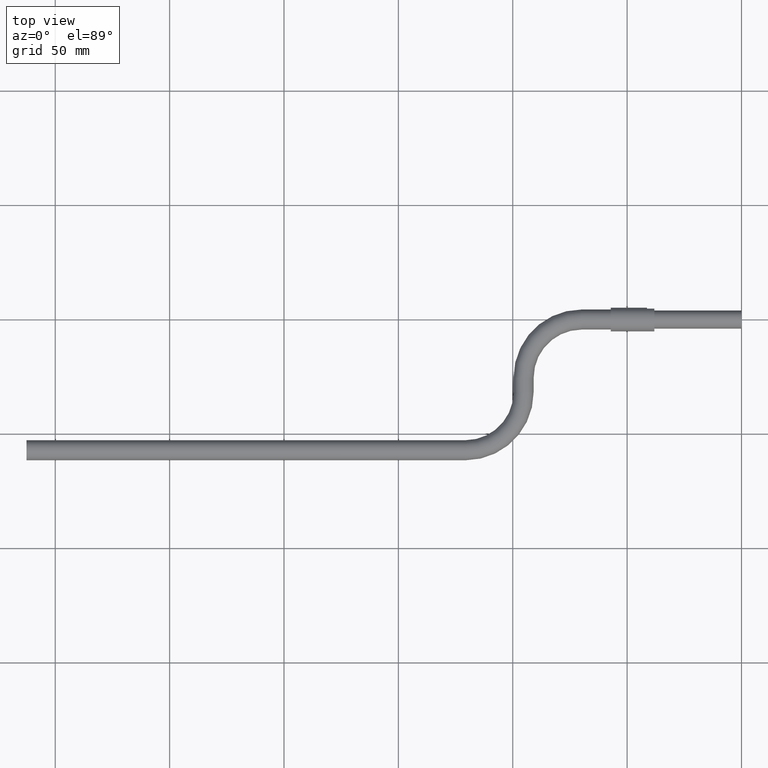
[diagram: clean part render]
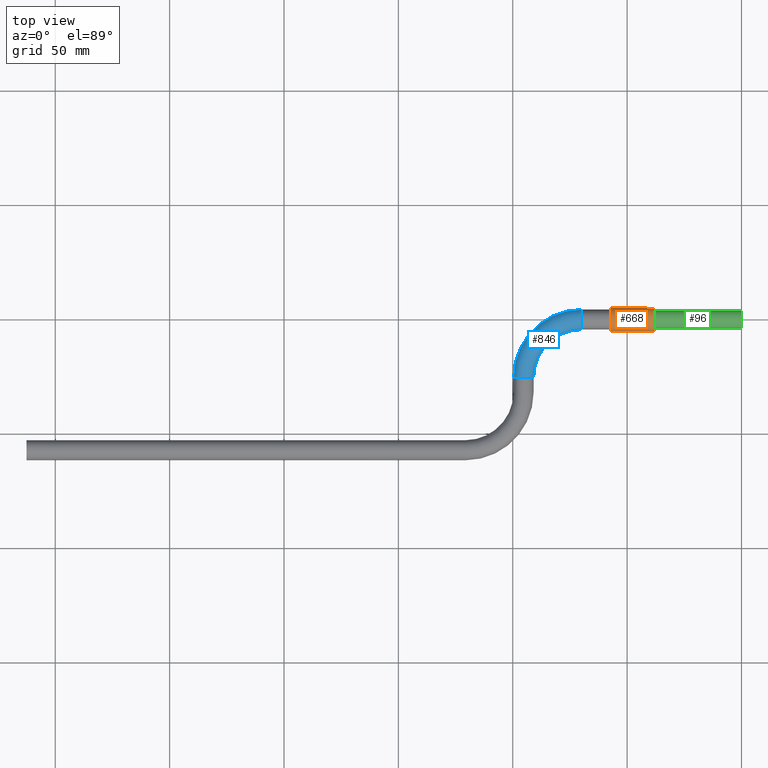
[diagram: same view with three faces highlighted in distinct colors, each labeled with its STEP entity id]
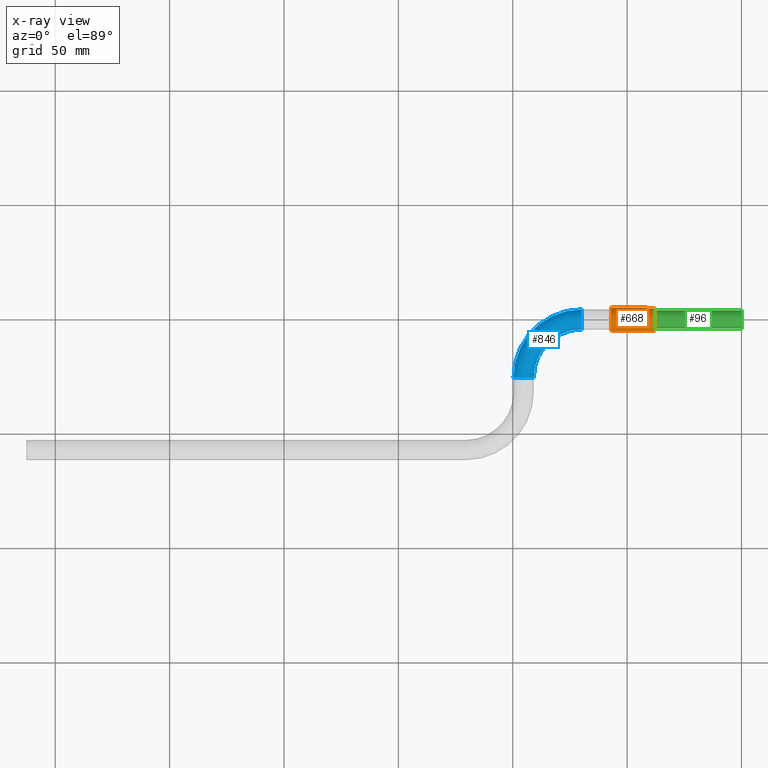
[diagram: x-ray of the same camera — body ghosted, the three highlighted faces saturated]
A machine part, top view with three faces highlighted in distinct colors.
The next image is the same camera in x-ray (body ghosted, the three faces saturated) — at least one of them is partly hidden behind the body in this view.
Their STEP definitions:

[orange] entity #668 — the highlighted cylindrical surface (edge-blend (fillet) strip) has radius 5.1562 mm, axis along (-1, -0, 0).
#23 = CARTESIAN_POINT ( 'NONE',  ( -2.250000000000000444, -2.048885995248197414E-16, 0.0000000000000000000 ) ) ;
#65 = EDGE_CURVE ( 'NONE', #452, #667, #132, .T. ) ;
#69 = ORIENTED_EDGE ( 'NONE', *, *, #501, .F. ) ;
#77 = AXIS2_PLACEMENT_3D ( 'NONE', #1287, #162, #1147 ) ;
#102 = CARTESIAN_POINT ( 'NONE',  ( -2.372323719839775968, 0.1870000000000000828, 0.07899367063252536736 ) ) ;
#115 = ORIENTED_EDGE ( 'NONE', *, *, #772, .T. ) ;
#117 = VERTEX_POINT ( 'NONE', #807 ) ;
#127 = DIRECTION ( 'NONE',  ( 1.000000000000000000, 0.0000000000000000000, 0.0000000000000000000 ) ) ;
#132 = LINE ( 'NONE', #351, #1175 ) ;
#140 = LINE ( 'NONE', #283, #473 ) ;
#162 = DIRECTION ( 'NONE',  ( -1.000000000000000000, -1.836970198721030181E-16, 0.0000000000000000000 ) ) ;
#166 = CARTESIAN_POINT ( 'NONE',  ( -1.625000000000000000, -6.829619984160658046E-17, 0.0000000000000000000 ) ) ;
#183 = DIRECTION ( 'NONE',  ( -1.000000000000000000, -1.836970198721030181E-16, 0.0000000000000000000 ) ) ;
#203 = FACE_OUTER_BOUND ( 'NONE', #1155, .T. ) ;
#207 = ORIENTED_EDGE ( 'NONE', *, *, #1097, .T. ) ;
#246 = ORIENTED_EDGE ( 'NONE', *, *, #65, .T. ) ;
#283 = CARTESIAN_POINT ( 'NONE',  ( -2.372323719839775968, -0.2030000000000000693, 0.0000000000000000000 ) ) ;
#292 = CARTESIAN_POINT ( 'NONE',  ( -1.625000000000000000, 0.1870000000000002216, 0.07899367063252536736 ) ) ;
#315 = CARTESIAN_POINT ( 'NONE',  ( -2.372323719839775968, -2.048885995248197414E-16, 0.0000000000000000000 ) ) ;
#319 = DIRECTION ( 'NONE',  ( -1.000000000000000000, -1.836970198721030181E-16, 0.0000000000000000000 ) ) ;
#320 = AXIS2_PLACEMENT_3D ( 'NONE', #166, #127, #1300 ) ;
#351 = CARTESIAN_POINT ( 'NONE',  ( -2.372323719839775968, 0.2029999999999996529, 2.486033002269125204E-17 ) ) ;
#354 = ORIENTED_EDGE ( 'NONE', *, *, #1052, .F. ) ;
#362 = VECTOR ( 'NONE', #1158, 39.37007874015748143 ) ;
#393 = CYLINDRICAL_SURFACE ( 'NONE', #1187, 0.2029999999999998472 ) ;
#452 = VERTEX_POINT ( 'NONE', #1085 ) ;
#465 = VERTEX_POINT ( 'NONE', #292 ) ;
#473 = VECTOR ( 'NONE', #885, 39.37007874015748143 ) ;
#501 = EDGE_CURVE ( 'NONE', #117, #667, #645, .T. ) ;
#507 = DIRECTION ( 'NONE',  ( 0.0000000000000000000, -1.000000000000000000, 0.0000000000000000000 ) ) ;
#587 = CARTESIAN_POINT ( 'NONE',  ( -1.500000000000000222, -0.2029999999999999305, 0.0000000000000000000 ) ) ;
#590 = AXIS2_PLACEMENT_3D ( 'NONE', #23, #721, #507 ) ;
#645 = CIRCLE ( 'NONE', #590, 0.2029999999999999027 ) ;
#667 = VERTEX_POINT ( 'NONE', #1016 ) ;
#668 = ADVANCED_FACE ( 'NONE', ( #203 ), #393, .T. ) ;
#696 = VERTEX_POINT ( 'NONE', #986 ) ;
#721 = DIRECTION ( 'NONE',  ( -1.000000000000000000, -1.836970198721030181E-16, 0.0000000000000000000 ) ) ;
#752 = VERTEX_POINT ( 'NONE', #587 ) ;
#772 = EDGE_CURVE ( 'NONE', #752, #696, #828, .T. ) ;
#807 = CARTESIAN_POINT ( 'NONE',  ( -2.250000000000000444, -0.2030000000000000970, 0.0000000000000000000 ) ) ;
#828 = CIRCLE ( 'NONE', #77, 0.2029999999999998472 ) ;
#885 = DIRECTION ( 'NONE',  ( -1.000000000000000000, -1.836970198721030181E-16, 0.0000000000000000000 ) ) ;
#932 = DIRECTION ( 'NONE',  ( 0.0000000000000000000, -1.000000000000000000, 0.0000000000000000000 ) ) ;
#986 = CARTESIAN_POINT ( 'NONE',  ( -1.500000000000000222, 0.1870000000000002216, 0.07899367063252536736 ) ) ;
#1016 = CARTESIAN_POINT ( 'NONE',  ( -2.250000000000000444, 0.2029999999999996807, 2.486033002269125204E-17 ) ) ;
#1052 = EDGE_CURVE ( 'NONE', #752, #117, #140, .T. ) ;
#1085 = CARTESIAN_POINT ( 'NONE',  ( -1.625000000000000000, 0.2029999999999998195, 2.486033002269126128E-17 ) ) ;
#1097 = EDGE_CURVE ( 'NONE', #696, #465, #1104, .T. ) ;
#1104 = LINE ( 'NONE', #102, #362 ) ;
#1147 = DIRECTION ( 'NONE',  ( 0.0000000000000000000, -1.000000000000000000, 0.0000000000000000000 ) ) ;
#1155 = EDGE_LOOP ( 'NONE', ( #1203, #246, #69, #354, #115, #207 ) ) ;
#1158 = DIRECTION ( 'NONE',  ( -1.000000000000000000, -1.836970198721030181E-16, 0.0000000000000000000 ) ) ;
#1175 = VECTOR ( 'NONE', #183, 39.37007874015748143 ) ;
#1187 = AXIS2_PLACEMENT_3D ( 'NONE', #315, #319, #932 ) ;
#1203 = ORIENTED_EDGE ( 'NONE', *, *, #1225, .F. ) ;
#1225 = EDGE_CURVE ( 'NONE', #452, #465, #1246, .T. ) ;
#1246 = CIRCLE ( 'NONE', #320, 0.2029999999999998472 ) ;
#1287 = CARTESIAN_POINT ( 'NONE',  ( -1.500000000000000222, -6.829619984160658046E-17, 0.0000000000000000000 ) ) ;
#1300 = DIRECTION ( 'NONE',  ( 0.0000000000000000000, 0.0000000000000000000, -1.000000000000000000 ) ) ;

[blue] entity #846 — the highlighted toroidal blend (fillet) surface has major radius 25.4 mm and minor (blend) radius 4.3815 mm.
#13 = DIRECTION ( 'NONE',  ( -1.000000000000000000, -1.836970198721030181E-16, 0.0000000000000000000 ) ) ;
#16 = VERTEX_POINT ( 'NONE', #966 ) ;
#88 = DIRECTION ( 'NONE',  ( 1.000000000000000000, 7.918399981635551477E-16, 0.0000000000000000000 ) ) ;
#144 = DIRECTION ( 'NONE',  ( 0.0000000000000000000, 0.0000000000000000000, 1.000000000000000000 ) ) ;
#171 = ORIENTED_EDGE ( 'NONE', *, *, #1291, .F. ) ;
#209 = DIRECTION ( 'NONE',  ( 1.000000000000000000, 0.0000000000000000000, 0.0000000000000000000 ) ) ;
#278 = VERTEX_POINT ( 'NONE', #734 ) ;
#303 = DIRECTION ( 'NONE',  ( 0.0000000000000000000, -1.000000000000000000, 0.0000000000000000000 ) ) ;
#304 = CIRCLE ( 'NONE', #858, 1.172499999999998765 ) ;
#331 = FACE_OUTER_BOUND ( 'NONE', #940, .T. ) ;
#340 = CARTESIAN_POINT ( 'NONE',  ( -2.750000000000000444, -0.1725000000000000977, 0.0000000000000000000 ) ) ;
#345 = CIRCLE ( 'NONE', #520, 0.8274999999999987921 ) ;
#360 = EDGE_CURVE ( 'NONE', #917, #577, #1089, .T. ) ;
#383 = TOROIDAL_SURFACE ( 'NONE', #1039, 0.9999999999999987788, 0.1724999999999999589 ) ;
#426 = CARTESIAN_POINT ( 'NONE',  ( -2.750000000000000888, -1.000000000000000000, 0.0000000000000000000 ) ) ;
#436 = AXIS2_PLACEMENT_3D ( 'NONE', #1159, #495, #878 ) ;
#479 = ORIENTED_EDGE ( 'NONE', *, *, #891, .F. ) ;
#495 = DIRECTION ( 'NONE',  ( 7.044168388695577799E-16, -1.000000000000000000, 0.0000000000000000000 ) ) ;
#515 = CARTESIAN_POINT ( 'NONE',  ( -2.750000000000000888, -1.000000000000000000, -2.112515728529183919E-17 ) ) ;
#520 = AXIS2_PLACEMENT_3D ( 'NONE', #515, #1111, #209 ) ;
#555 = CIRCLE ( 'NONE', #1082, 0.1724999999999998757 ) ;
#577 = VERTEX_POINT ( 'NONE', #1185 ) ;
#682 = VERTEX_POINT ( 'NONE', #340 ) ;
#693 = ORIENTED_EDGE ( 'NONE', *, *, #360, .F. ) ;
#714 = AXIS2_PLACEMENT_3D ( 'NONE', #934, #13, #303 ) ;
#715 = EDGE_CURVE ( 'NONE', #682, #16, #1211, .T. ) ;
#734 = CARTESIAN_POINT ( 'NONE',  ( -3.577500000000001457, -0.9999999999999998890, -2.112515728529178680E-17 ) ) ;
#739 = DIRECTION ( 'NONE',  ( 1.000000000000000000, 0.0000000000000000000, 0.0000000000000000000 ) ) ;
#743 = DIRECTION ( 'NONE',  ( 1.000000000000000000, 0.0000000000000000000, 0.0000000000000000000 ) ) ;
#776 = ORIENTED_EDGE ( 'NONE', *, *, #888, .T. ) ;
#814 = CARTESIAN_POINT ( 'NONE',  ( -3.750000000000001332, -1.000000000000000000, 0.0000000000000000000 ) ) ;
#846 = ADVANCED_FACE ( 'NONE', ( #331 ), #383, .T. ) ;
#858 = AXIS2_PLACEMENT_3D ( 'NONE', #426, #144, #739 ) ;
#878 = DIRECTION ( 'NONE',  ( 1.000000000000000000, 7.918399981635551477E-16, 0.0000000000000000000 ) ) ;
#888 = EDGE_CURVE ( 'NONE', #16, #577, #304, .T. ) ;
#891 = EDGE_CURVE ( 'NONE', #278, #917, #555, .T. ) ;
#917 = VERTEX_POINT ( 'NONE', #1071 ) ;
#934 = CARTESIAN_POINT ( 'NONE',  ( -2.750000000000000444, -1.365923996832131609E-16, 0.0000000000000000000 ) ) ;
#940 = EDGE_LOOP ( 'NONE', ( #1271, #776, #693, #479, #171 ) ) ;
#966 = CARTESIAN_POINT ( 'NONE',  ( -2.750000000000000444, 0.1724999999999998201, 2.112515728529185768E-17 ) ) ;
#1011 = DIRECTION ( 'NONE',  ( 7.044168388695577799E-16, -1.000000000000000000, 0.0000000000000000000 ) ) ;
#1039 = AXIS2_PLACEMENT_3D ( 'NONE', #1274, #1083, #743 ) ;
#1071 = CARTESIAN_POINT ( 'NONE',  ( -3.750000000000001332, -1.000000000000000000, 0.1724999999999999589 ) ) ;
#1082 = AXIS2_PLACEMENT_3D ( 'NONE', #814, #1011, #88 ) ;
#1083 = DIRECTION ( 'NONE',  ( 0.0000000000000000000, 0.0000000000000000000, 1.000000000000000000 ) ) ;
#1089 = CIRCLE ( 'NONE', #436, 0.1724999999999998757 ) ;
#1111 = DIRECTION ( 'NONE',  ( 0.0000000000000000000, 0.0000000000000000000, 1.000000000000000000 ) ) ;
#1159 = CARTESIAN_POINT ( 'NONE',  ( -3.750000000000001332, -1.000000000000000000, 0.0000000000000000000 ) ) ;
#1185 = CARTESIAN_POINT ( 'NONE',  ( -3.922500000000000764, -1.000000000000000222, 0.0000000000000000000 ) ) ;
#1211 = CIRCLE ( 'NONE', #714, 0.1724999999999999589 ) ;
#1271 = ORIENTED_EDGE ( 'NONE', *, *, #715, .T. ) ;
#1274 = CARTESIAN_POINT ( 'NONE',  ( -2.750000000000000888, -1.000000000000000000, 0.0000000000000000000 ) ) ;
#1291 = EDGE_CURVE ( 'NONE', #682, #278, #345, .T. ) ;

[green] entity #96 — the highlighted cylindrical surface (edge-blend (fillet) strip) has radius 3.9624 mm, axis along (-1, -0, 0).
#91 = FACE_OUTER_BOUND ( 'NONE', #941, .T. ) ;
#96 = ADVANCED_FACE ( 'NONE', ( #91 ), #1278, .T. ) ;
#126 = EDGE_CURVE ( 'NONE', #982, #369, #761, .T. ) ;
#153 = CIRCLE ( 'NONE', #747, 0.1559999999999995557 ) ;
#175 = ORIENTED_EDGE ( 'NONE', *, *, #1152, .F. ) ;
#198 = AXIS2_PLACEMENT_3D ( 'NONE', #222, #431, #751 ) ;
#222 = CARTESIAN_POINT ( 'NONE',  ( -2.372323719839775968, -2.048885995248197414E-16, 0.0000000000000000000 ) ) ;
#254 = VECTOR ( 'NONE', #1059, 39.37007874015748143 ) ;
#287 = LINE ( 'NONE', #429, #254 ) ;
#325 = CIRCLE ( 'NONE', #581, 0.1559999999999998055 ) ;
#352 = ORIENTED_EDGE ( 'NONE', *, *, #442, .T. ) ;
#357 = VERTEX_POINT ( 'NONE', #553 ) ;
#369 = VERTEX_POINT ( 'NONE', #621 ) ;
#417 = DIRECTION ( 'NONE',  ( -1.000000000000000000, -1.836970198721030181E-16, 0.0000000000000000000 ) ) ;
#429 = CARTESIAN_POINT ( 'NONE',  ( -2.372323719839775968, -0.1559999999999998888, 0.0000000000000000000 ) ) ;
#431 = DIRECTION ( 'NONE',  ( -1.000000000000000000, -1.836970198721030181E-16, 0.0000000000000000000 ) ) ;
#433 = CARTESIAN_POINT ( 'NONE',  ( 0.0000000000000000000, 4.097771990496394828E-16, 0.0000000000000000000 ) ) ;
#438 = ORIENTED_EDGE ( 'NONE', *, *, #1110, .F. ) ;
#442 = EDGE_CURVE ( 'NONE', #357, #982, #153, .T. ) ;
#540 = VECTOR ( 'NONE', #730, 39.37007874015748143 ) ;
#553 = CARTESIAN_POINT ( 'NONE',  ( 2.865673510004798927E-17, -0.1559999999999991394, 0.0000000000000000000 ) ) ;
#581 = AXIS2_PLACEMENT_3D ( 'NONE', #1178, #1182, #1174 ) ;
#621 = CARTESIAN_POINT ( 'NONE',  ( -1.500000000000000222, 0.1559999999999997500, 1.910449006669867697E-17 ) ) ;
#719 = VERTEX_POINT ( 'NONE', #1172 ) ;
#730 = DIRECTION ( 'NONE',  ( -1.000000000000000000, -1.836970198721030181E-16, 0.0000000000000000000 ) ) ;
#738 = CARTESIAN_POINT ( 'NONE',  ( -2.372323719839775968, 0.1559999999999994724, 1.910449006669867081E-17 ) ) ;
#747 = AXIS2_PLACEMENT_3D ( 'NONE', #433, #417, #1116 ) ;
#751 = DIRECTION ( 'NONE',  ( 0.0000000000000000000, -1.000000000000000000, 0.0000000000000000000 ) ) ;
#761 = LINE ( 'NONE', #738, #540 ) ;
#941 = EDGE_LOOP ( 'NONE', ( #352, #1253, #438, #175 ) ) ;
#982 = VERTEX_POINT ( 'NONE', #989 ) ;
#989 = CARTESIAN_POINT ( 'NONE',  ( -2.865673510004798310E-17, 0.1559999999999999443, 1.910449006669869546E-17 ) ) ;
#1059 = DIRECTION ( 'NONE',  ( -1.000000000000000000, -1.836970198721030181E-16, 0.0000000000000000000 ) ) ;
#1110 = EDGE_CURVE ( 'NONE', #719, #369, #325, .T. ) ;
#1116 = DIRECTION ( 'NONE',  ( 1.836970198721030181E-16, -1.000000000000000000, 0.0000000000000000000 ) ) ;
#1152 = EDGE_CURVE ( 'NONE', #357, #719, #287, .T. ) ;
#1172 = CARTESIAN_POINT ( 'NONE',  ( -1.500000000000000222, -0.1559999999999998888, 0.0000000000000000000 ) ) ;
#1174 = DIRECTION ( 'NONE',  ( 0.0000000000000000000, -1.000000000000000000, 0.0000000000000000000 ) ) ;
#1178 = CARTESIAN_POINT ( 'NONE',  ( -1.500000000000000222, -6.829619984160658046E-17, 0.0000000000000000000 ) ) ;
#1182 = DIRECTION ( 'NONE',  ( -1.000000000000000000, -1.836970198721030181E-16, 0.0000000000000000000 ) ) ;
#1253 = ORIENTED_EDGE ( 'NONE', *, *, #126, .T. ) ;
#1278 = CYLINDRICAL_SURFACE ( 'NONE', #198, 0.1559999999999996945 ) ;